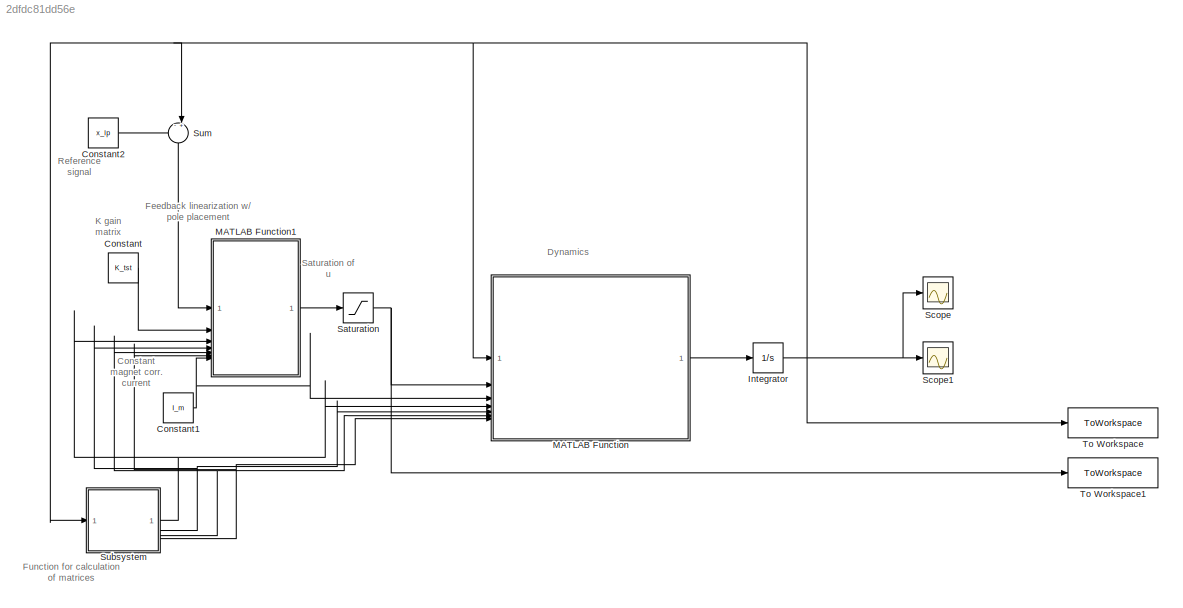
MODEL slx_2dfdc81dd56e
KIND model
CONFIG AbsTol = auto
CONFIG EnableMultiTasking = off
CONFIG FixedStep = auto
CONFIG MaxStep = auto
CONFIG MinStep = auto
CONFIG RelTol = 1e-3
CONFIG SampleTimeConstraint = Unconstrained
CONFIG SolverName = VariableStepAuto
CONFIG StartTime = 0.0
CONFIG StopTime = 0.5
BLOCK [Constant] Constant
  Value = K_tst
BLOCK [Constant] Constant1
  Value = I_m
BLOCK [Constant] Constant2
  Value = x_lp
BLOCK [Integrator] Integrator
  InitialCondition = x0
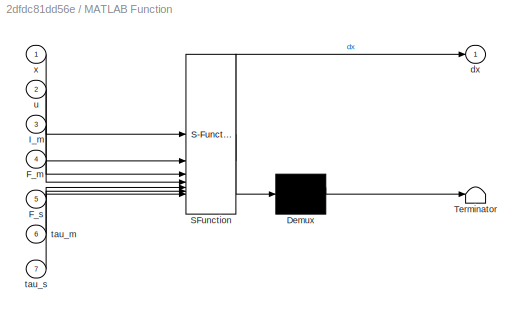
BLOCK [SubSystem] MATLAB Function
  ErrorFcn = Stateflow.Translate.translate
  LibrarySourceBlock = simulink/User-Defined\nFunctions/MATLAB Function
  PermitHierarchicalResolution = ExplicitOnly
  SFBlockType = MATLAB Function
  TreatAsAtomicUnit = on
BLOCK [Demux] MATLAB Function/ Demux 
  Outputs = 1
BLOCK [S-Function] MATLAB Function/ SFunction 
  EnableBusSupport = on
  FunctionName = sf_sfun
  Parameters = params
  PortCounts = [7 2]
  SFcnIsStateOwnerBlock = off
  SFunctionDeploymentMode = off
  Tag = Stateflow S-Function 2
BLOCK [Terminator] MATLAB Function/ Terminator 
BLOCK [Inport] MATLAB Function/F_m
  Port = 4
BLOCK [Inport] MATLAB Function/F_s
  Port = 5
BLOCK [Inport] MATLAB Function/I_m
  Port = 3
BLOCK [Outport] MATLAB Function/dx
BLOCK [Inport] MATLAB Function/tau_m
  Port = 6
BLOCK [Inport] MATLAB Function/tau_s
  Port = 7
BLOCK [Inport] MATLAB Function/u
  Port = 2
BLOCK [Inport] MATLAB Function/x
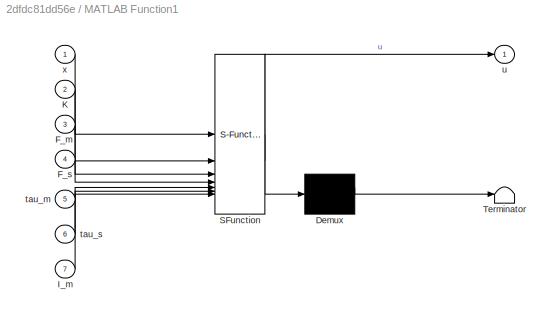
BLOCK [SubSystem] MATLAB Function1
  ErrorFcn = Stateflow.Translate.translate
  LibrarySourceBlock = simulink/User-Defined\nFunctions/MATLAB Function
  PermitHierarchicalResolution = ExplicitOnly
  SFBlockType = MATLAB Function
  TreatAsAtomicUnit = on
BLOCK [Demux] MATLAB Function1/ Demux 
  Outputs = 1
BLOCK [S-Function] MATLAB Function1/ SFunction 
  EnableBusSupport = on
  FunctionName = sf_sfun
  Parameters = params
  PortCounts = [7 2]
  SFcnIsStateOwnerBlock = off
  SFunctionDeploymentMode = off
  Tag = Stateflow S-Function 1
BLOCK [Terminator] MATLAB Function1/ Terminator 
BLOCK [Inport] MATLAB Function1/F_m
  Port = 3
BLOCK [Inport] MATLAB Function1/F_s
  Port = 4
BLOCK [Inport] MATLAB Function1/I_m
  Port = 7
BLOCK [Inport] MATLAB Function1/K
  Port = 2
BLOCK [Inport] MATLAB Function1/tau_m
  Port = 5
BLOCK [Inport] MATLAB Function1/tau_s
  Port = 6
BLOCK [Outport] MATLAB Function1/u
BLOCK [Inport] MATLAB Function1/x
BLOCK [Saturate] Saturation
  LowerLimit = -200
  UpperLimit = 200
BLOCK [Scope] Scope
  Floating = off
  NumInputPorts = 1
  ScopeSpecificationString = Simulink.scopes.TimeScopeBlockCfg('CurrentConfiguration', extmgr.ConfigurationSet(extmgr.Configuration('Core','General UI',true),extmgr.Configuration('Core','Source UI',true),extmgr.Configuration('Sources','WiredSimulink',true,'DataLoggingVariableName','ScopeData1'),extmgr.Configuration('Visuals','Time Domain',true,'SerializedDisplays',{struct('MinYLimReal','-2218.23962','MaxYLimReal','1991.14756'...<+1588ch>
BLOCK [Scope] Scope1
  Floating = off
  NumInputPorts = 1
  ScopeSpecificationString = Simulink.scopes.TimeScopeBlockCfg('CurrentConfiguration', extmgr.ConfigurationSet(extmgr.Configuration('Core','General UI',true),extmgr.Configuration('Core','Source UI',true),extmgr.Configuration('Sources','WiredSimulink',true,'DataLoggingVariableName','ScopeData1'),extmgr.Configuration('Visuals','Time Domain',true,'SerializedDisplays',{struct('MinYLimReal','-0.80121','MaxYLimReal','1.031','YLabel...<+2984ch>
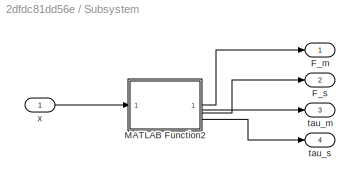
BLOCK [SubSystem] Subsystem
BLOCK [Outport] Subsystem/F_m
BLOCK [Outport] Subsystem/F_s
  Port = 2
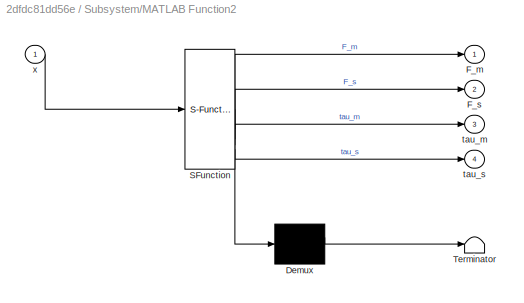
BLOCK [SubSystem] Subsystem/MATLAB Function2
  ErrorFcn = Stateflow.Translate.translate
  LibrarySourceBlock = simulink/User-Defined\nFunctions/MATLAB Function
  PermitHierarchicalResolution = ExplicitOnly
  SFBlockType = MATLAB Function
  TreatAsAtomicUnit = on
BLOCK [Demux] Subsystem/MATLAB Function2/ Demux 
  Outputs = 1
BLOCK [S-Function] Subsystem/MATLAB Function2/ SFunction 
  EnableBusSupport = on
  FunctionName = sf_sfun
  Parameters = params
  PortCounts = [1 5]
  SFcnIsStateOwnerBlock = off
  SFunctionDeploymentMode = off
  Tag = Stateflow S-Function 3
BLOCK [Terminator] Subsystem/MATLAB Function2/ Terminator 
BLOCK [Outport] Subsystem/MATLAB Function2/F_m
BLOCK [Outport] Subsystem/MATLAB Function2/F_s
  Port = 2
BLOCK [Outport] Subsystem/MATLAB Function2/tau_m
  Port = 3
BLOCK [Outport] Subsystem/MATLAB Function2/tau_s
  Port = 4
BLOCK [Inport] Subsystem/MATLAB Function2/x
BLOCK [Outport] Subsystem/tau_m
  Port = 3
BLOCK [Outport] Subsystem/tau_s
  Port = 4
BLOCK [Inport] Subsystem/x
BLOCK [Sum] Sum
  Inputs = -+|
  NameLocation = right
BLOCK [ToWorkspace] To Workspace
  FixptAsFi = on
  MaxDataPoints = inf
  SampleTime = -1
  Save2DSignal = 2-D array (concatenate along first dimension)
  VariableName = states
BLOCK [ToWorkspace] To Workspace1
  FixptAsFi = on
  MaxDataPoints = inf
  SampleTime = -1
  VariableName = input
ANNOTATION (root): Saturation of u
ANNOTATION (root): Constant magnet corr. current
ANNOTATION (root): Dynamics
ANNOTATION (root): Feedback linearization w/ pole placement
ANNOTATION (root): Function for calculation of matrices
ANNOTATION (root): K gain matrix
ANNOTATION (root): Reference signal
NET Constant1:1 -> MATLAB Function1:7, MATLAB Function:3
LINE Constant2:1 -> Sum:1
LINE Constant:1 -> MATLAB Function1:2
NET Integrator:1 -> MATLAB Function:1, Scope1:1, Scope:1, Subsystem:1, Sum:2, To Workspace:1
LINE MATLAB Function1:1 -> Saturation:1
LINE MATLAB Function:1 -> Integrator:1
NET Saturation:1 -> MATLAB Function:2, To Workspace1:1
LINE Subsystem/MATLAB Function2:1 -> Subsystem/F_m:1
LINE Subsystem/MATLAB Function2:2 -> Subsystem/F_s:1
LINE Subsystem/MATLAB Function2:3 -> Subsystem/tau_m:1
LINE Subsystem/MATLAB Function2:4 -> Subsystem/tau_s:1
LINE Subsystem/x:1 -> Subsystem/MATLAB Function2:1
NET Subsystem:1 -> MATLAB Function1:3, MATLAB Function:4
NET Subsystem:2 -> MATLAB Function1:4, MATLAB Function:5
NET Subsystem:3 -> MATLAB Function1:5, MATLAB Function:6
NET Subsystem:4 -> MATLAB Function1:6, MATLAB Function:7
LINE Sum:1 -> MATLAB Function1:1
note: NET lines group one-source signal fan-out (src -> all destinations, sorted); 1:1 wires keep LINE
CHART MATLAB Function1 states=1 transitions=1
  STATE_LABEL 'eML_blk_kernel()'
  STATE_LABEL 'SCRIPT:\nfunction u = feedback_ln(x, K, params, F_m, F_s, tau_m, tau_s, I_m)\n\n    g = [\n    params.magnet.m*eye(3), zeros(3);\n    zeros(3), diag(params.magnet.I)\n    ];\n\n    h = [zeros(3,1); cross(x(10:12),diag(params.magnet.I)*x(10:12))]-[zeros(2,1);params.physical.g;zeros(3,1)];\n\n    Fs = [F_s;tau_s];\n    Fm = [F_m;tau_m];\n\n    u = Fs\\(h-Fm*I_m-g*K*x);\n    %u = -K*x([1:5,7:11]);%linearization\n\n  ...<+13ch>'
CHART MATLAB Function states=1 transitions=1
  STATE_LABEL 'eML_blk_kernel()'
  STATE_LABEL 'SCRIPT:\nfunction dx = maglevSystemDynamics(x,u,I_m,params,F_m,F_s,tau_m,tau_s)\n    %{\n    Computes the derivative of the state for a magnetic levitation system.\n    - x: current state\n    - u: control input\n    - params: system parameters\n    %}\n\n    F = F_m*I_m+F_s*u;\n    tau = tau_m*I_m+tau_s*u;\n    \n    % Setting up system matrices\n    A = [\n        zeros(6), eye(6);\n        zeros(6), zeros(6)\n...<+425ch>'
CHART Subsystem/MATLAB Function2 states=1 transitions=1
  STATE_LABEL 'eML_blk_kernel()'
  STATE_LABEL 'SCRIPT:\nfunction [F_m,F_s,tau_m,tau_s] = fcn(x,params)\n[F_m,F_s,tau_m,tau_s] = force(x,params);\n'
CHART  states=0 transitions=0
CHART  states=0 transitions=0
CHART  states=0 transitions=0
